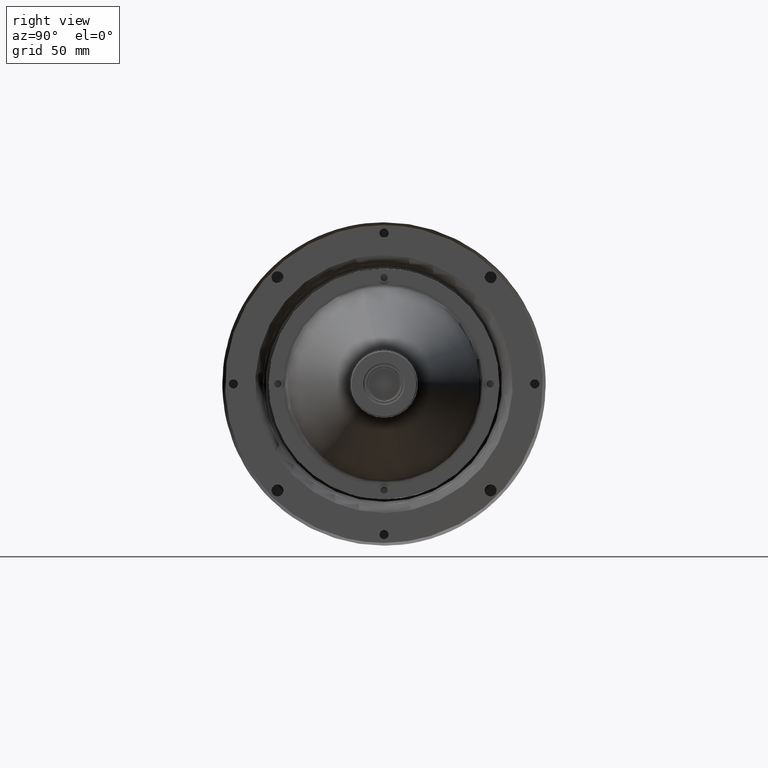
[diagram: clean part render]
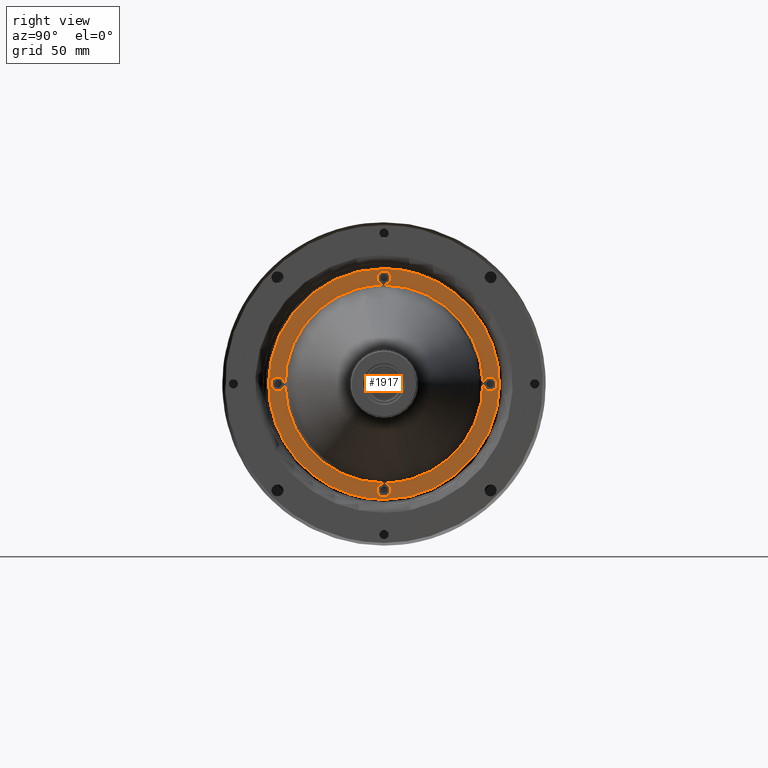
[diagram: same view with one face highlighted and labeled with its STEP entity id]
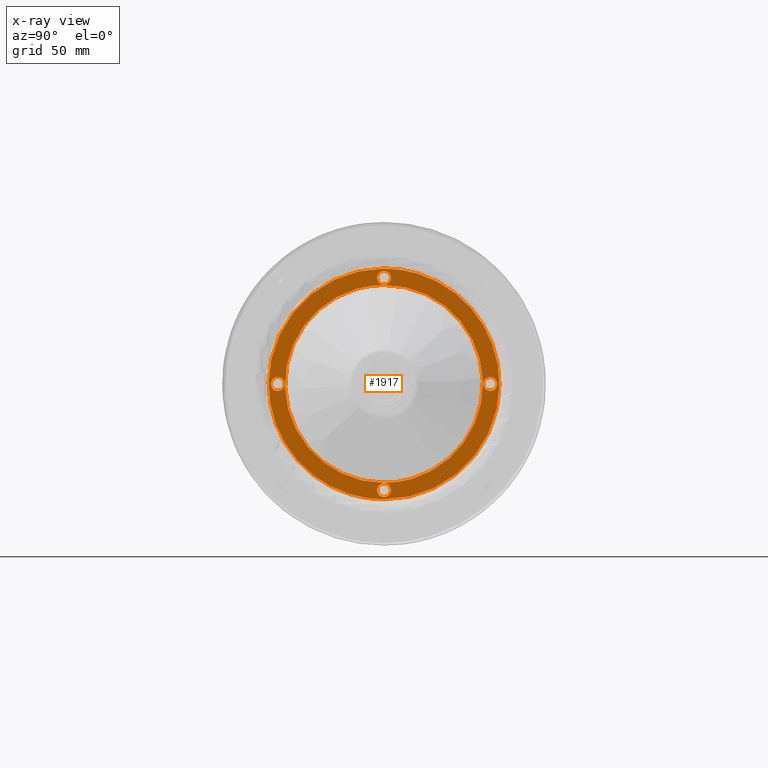
[diagram: x-ray of the same camera — body ghosted, the highlighted face saturated]
A machine part, right view. The second image highlights one B-rep face of the part: STEP entity #1917.
The next image is the same camera in x-ray: the body ghosted, the highlighted face saturated — about 0% of this face is hidden behind the body in this view.
In plain terms, the highlighted planar face has unit normal (1, 0, 0).
Its self-contained STEP definition (entity closure, byte-faithful):
#3 = CARTESIAN_POINT ( 'NONE',  ( 161.0389117160000296, 4.117472029141106660, -131.0910145502462569 ) ) ;
#40 = CARTESIAN_POINT ( 'NONE',  ( 161.0389117163655328, -8.049116928532384918E-13, -6.473153871999994813 ) ) ;
#68 = CARTESIAN_POINT ( 'NONE',  ( 161.0389117160000296, -47.47248686520487126, -26.60025869309153279 ) ) ;
#95 = CARTESIAN_POINT ( 'NONE',  ( 161.0389117160000580, 60.98255263353625111, -51.87580994879739649 ) ) ;
#100 = CARTESIAN_POINT ( 'NONE',  ( 161.0389117160000296, -3.274454732592399608, -8.328974213624936951 ) ) ;
#143 = CARTESIAN_POINT ( 'NONE',  ( 161.0389117160000296, 3.544381890641800759, -14.22852663700000697 ) ) ;
#156 = ORIENTED_EDGE ( 'NONE', *, *, #12985, .T. ) ;
#163 = CARTESIAN_POINT ( 'NONE',  ( 161.0389117160000296, -31.56160650135801760, -13.54263103552140990 ) ) ;
#390 = CARTESIAN_POINT ( 'NONE',  ( 161.0389117160000296, -17.38755938195324546, -119.4642967694286995 ) ) ;
#522 = CARTESIAN_POINT ( 'NONE',  ( 161.0389117160000865, -11.27876224693847540, -130.2137380401611608 ) ) ;
#567 = CARTESIAN_POINT ( 'NONE',  ( 161.0389117160000296, -40.68664381772625660, -32.54986956188965053 ) ) ;
#644 = CARTESIAN_POINT ( 'NONE',  ( 161.0389117160000012, -3.654776427326511090, -127.1991557368634176 ) ) ;
#659 = CARTESIAN_POINT ( 'NONE',  ( 161.0389117160000580, -35.67324858157572010, -27.53655237819077684 ) ) ;
#694 = CARTESIAN_POINT ( 'NONE',  ( 161.0389117160000012, 3.749927119244932605, -9.726239630900860078 ) ) ;
#718 = FACE_BOUND ( 'NONE', #4202, .T. ) ;
#878 = CARTESIAN_POINT ( 'NONE',  ( 161.0389117163655328, -61.74999999999975131, -68.22315387216745819 ) ) ;
#938 = CARTESIAN_POINT ( 'NONE',  ( 161.0389117160000296, 60.30033053437433210, -71.22622726547265870 ) ) ;
#1120 = CARTESIAN_POINT ( 'NONE',  ( 161.0389117160000012, 16.34770587345265724, -129.2056440920947580 ) ) ;
#1194 = CARTESIAN_POINT ( 'NONE',  ( 161.0389117160000296, 3.002970324510967348, -128.5233813374299245 ) ) ;
#1218 = CARTESIAN_POINT ( 'NONE',  ( 161.0389117160000012, 59.78726682771062428, -47.93574399662016106 ) ) ;
#1221 = CARTESIAN_POINT ( 'NONE',  ( 161.0389117163655328, -61.74999999999975131, -68.22315387216745819 ) ) ;
#1310 = CARTESIAN_POINT ( 'NONE',  ( 161.0389117159999728, 38.44006014733103171, -18.13853954491141351 ) ) ;
#1358 = CARTESIAN_POINT ( 'NONE',  ( 161.0389117160000296, 35.67320876119070050, -27.53661446789783795 ) ) ;
#1383 = CARTESIAN_POINT ( 'NONE',  ( 161.0389117160000296, 54.34535823874349347, -67.24720778765367868 ) ) ;
#1394 = ORIENTED_EDGE ( 'NONE', *, *, #12240, .T. ) ;
#1405 = CARTESIAN_POINT ( 'NONE',  ( 161.0389117160000296, 14.31029795757659429, -6.867659532099485098 ) ) ;
#1436 = CARTESIAN_POINT ( 'NONE',  ( 161.0389117160000296, -57.02405391582720995, -64.56851211069668750 ) ) ;
#1499 = CARTESIAN_POINT ( 'NONE',  ( 161.0389117160000296, 11.27641026424283410, -130.2141875202475489 ) ) ;
#1549 = CARTESIAN_POINT ( 'NONE',  ( 161.0389117160000296, 7.056449687612154520, -14.57458209316809494 ) ) ;
#1603 = CARTESIAN_POINT ( 'NONE',  ( 161.0389117160000296, -3.002970324508358768, -7.922926406563331803 ) ) ;
#1776 = B_SPLINE_CURVE_WITH_KNOTS ( 'NONE', 3,
 ( #17470, #16157, #3401, #17657, #9080, #7685, #9172, #14868, #694, #7779, #13472, #15315, #15225, #2283, #10846, #6662, #14964, #13564 ),
 .UNSPECIFIED., .F., .F.,
 ( 4, 2, 2, 2, 2, 2, 2, 2, 4 ),
 ( 0.5000000000000000000, 0.5624999999999998890, 0.6249999999999997780, 0.6874999999999997780, 0.7499999999999997780, 0.8124999999999998890, 0.8749999999999998890, 0.9375000000000000000, 1.000000000000000000 ),
 .UNSPECIFIED. ) ;
#1887 = CARTESIAN_POINT ( 'NONE',  ( 161.0389117160000296, -3.544751096055065887, -14.22852663700000697 ) ) ;
#1917 = ADVANCED_FACE ( 'NONE', ( #14894, #718, #12090, #7895, #13586, #6506 ), #1943, .T. ) ;
#1943 = PLANE ( 'NONE',  #15541 ) ;
#2071 = CARTESIAN_POINT ( 'NONE',  ( 161.0389117160000580, -17.38817520905850600, -16.98219401569953391 ) ) ;
#2074 = CARTESIAN_POINT ( 'NONE',  ( 161.0389117160000296, 61.00297032452583323, -70.52338133742397019 ) ) ;
#2146 = CARTESIAN_POINT ( 'NONE',  ( 161.0389117160000012, -2.300330534377600600, -123.2200804785263415 ) ) ;
#2163 = CARTESIAN_POINT ( 'NONE',  ( 161.0389117157644989, 2.457945681961920278E-11, -122.2177811068669939 ) ) ;
#2184 = EDGE_CURVE ( 'NONE', #17455, #16139, #15841, .T. ) ;
#2283 = CARTESIAN_POINT ( 'NONE',  ( 161.0389117160000296, 2.300330534376698211, -13.22622726547020555 ) ) ;
#2312 = ORIENTED_EDGE ( 'NONE', *, *, #8029, .T. ) ;
#2416 = CARTESIAN_POINT ( 'NONE',  ( 161.0389117160000012, 3.274454732592463113, -128.1173335303708143 ) ) ;
#2510 = CARTESIAN_POINT ( 'NONE',  ( 161.0389117160000296, 58.49691424107486171, -64.47308099124188630 ) ) ;
#2600 = CARTESIAN_POINT ( 'NONE',  ( 161.0389117160000296, 54.25000000000002132, -67.72606360817704285 ) ) ;
#2616 = ORIENTED_EDGE ( 'NONE', *, *, #12443, .T. ) ;
#2620 = CARTESIAN_POINT ( 'NONE',  ( 161.0389117160000580, 31.56175832515216584, -13.54264601989101102 ) ) ;
#2623 = CARTESIAN_POINT ( 'NONE',  ( 161.0389117160000296, -61.74992711922997302, -68.72006811326984632 ) ) ;
#2647 = CARTESIAN_POINT ( 'NONE',  ( 161.0389117164875188, -7.080532376349109395E-14, -129.9731538719985906 ) ) ;
#2713 = CARTESIAN_POINT ( 'NONE',  ( 161.0389117160000296, 62.59642686345928553, -76.45736425718196472 ) ) ;
#2762 = CARTESIAN_POINT ( 'NONE',  ( 161.0389117160000012, 23.93813324461543957, -19.69524470270077288 ) ) ;
#2781 = CARTESIAN_POINT ( 'NONE',  ( 161.0389117160000296, -5.661979251878589636, -5.475737327016373612 ) ) ;
#2904 = CARTESIAN_POINT ( 'NONE',  ( 161.0389117160000580, 62.99999486906458657, -64.08656991015384108 ) ) ;
#2907 = CARTESIAN_POINT ( 'NONE',  ( 161.0389117160000296, -54.34535823869154569, -69.19909995616920639 ) ) ;
#3064 = CARTESIAN_POINT ( 'NONE',  ( 161.0389117160000296, -62.59638853523033220, -76.45718834496358340 ) ) ;
#3169 = B_SPLINE_CURVE_WITH_KNOTS ( 'NONE', 3,
 ( #8301, #5703, #2907, #11385, #17063, #6816, #16965, #16778, #12500, #18179, #14085, #4027, #9698, #4311, #5515, #15380, #2623, #1221 ),
 .UNSPECIFIED., .F., .F.,
 ( 4, 2, 2, 2, 2, 2, 2, 2, 4 ),
 ( 0.000000000000000000, 0.06250000000000000000, 0.1250000000000000000, 0.1875000000000000000, 0.2500000000000000000, 0.3125000000000000000, 0.3750000000000000000, 0.4375000000000000000, 0.5000000000000000000 ),
 .UNSPECIFIED. ) ;
#3240 = CARTESIAN_POINT ( 'NONE',  ( 161.0389117160000296, 0.000000000000000000, -131.2231538716189903 ) ) ;
#3283 = CARTESIAN_POINT ( 'NONE',  ( 161.0389117160000296, -53.64865834668400169, -61.16619816021698597 ) ) ;
#3285 = CARTESIAN_POINT ( 'NONE',  ( 161.0389117160000296, 27.05027908240523260, -21.35879843066304673 ) ) ;
#3373 = CARTESIAN_POINT ( 'NONE',  ( 161.0389117160000580, -53.99461408344740221, -64.67816762558052801 ) ) ;
#3401 = CARTESIAN_POINT ( 'NONE',  ( 161.0389117160000296, 0.9759460843493316107, -6.568512110747937172 ) ) ;
#3435 = B_SPLINE_CURVE_WITH_KNOTS ( 'NONE', 3,
 ( #6270, #13533, #10541, #10634, #2074, #938, #3561, #17809, #14935, #17900, #6633, #6365, #9144, #11942, #8024, #13717, #17626, #5051 ),
 .UNSPECIFIED., .F., .F.,
 ( 4, 2, 2, 2, 2, 2, 2, 2, 4 ),
 ( 0.5000000000000000000, 0.5625000000000000000, 0.6250000000000000000, 0.6875000000000000000, 0.7500000000000000000, 0.8125000000000000000, 0.8750000000000000000, 0.9375000000000000000, 1.000000000000000000 ),
 .UNSPECIFIED. ) ;
#3447 = CARTESIAN_POINT ( 'NONE',  ( 161.0389117160000296, -2.300227465421268658, -129.2261241965265128 ) ) ;
#3463 = CARTESIAN_POINT ( 'NONE',  ( 161.0389117160000296, -14.01114745304531084, -120.4884604461021809 ) ) ;
#3540 = CARTESIAN_POINT ( 'NONE',  ( 161.0389117160000296, -3.274454732583433891, -124.3289742136130798 ) ) ;
#3560 = CARTESIAN_POINT ( 'NONE',  ( 161.0389117160000580, 17.38817520808597550, -119.4641137276522045 ) ) ;
#3561 = CARTESIAN_POINT ( 'NONE',  ( 161.0389117160000296, 59.89412387786651237, -71.49747393850732635 ) ) ;
#3654 = CARTESIAN_POINT ( 'NONE',  ( 161.0389117160000012, 3.544751093373791129, -122.2177811068669655 ) ) ;
#3728 = CARTESIAN_POINT ( 'NONE',  ( 161.0389117160000012, 3.750072880753861693, -126.7200681130871658 ) ) ;
#3748 = CARTESIAN_POINT ( 'NONE',  ( 161.0389117160000580, 42.92544317121446795, -101.1685632536766519 ) ) ;
#3967 = EDGE_LOOP ( 'NONE', ( #14954, #10419 ) ) ;
#4004 = CARTESIAN_POINT ( 'NONE',  ( 161.0389117160000296, 0.9759460843491211124, -122.5685121107464255 ) ) ;
#4024 = CARTESIAN_POINT ( 'NONE',  ( 161.0389117160000580, 56.62148673109299324, -40.29247687628883767 ) ) ;
#4027 = CARTESIAN_POINT ( 'NONE',  ( 161.0389117160000296, -59.89417965823452050, -71.49760860467463885 ) ) ;
#4098 = CARTESIAN_POINT ( 'NONE',  ( 161.0389117160000296, -0.4974714381106030148, -122.4731538719999691 ) ) ;
#4116 = CARTESIAN_POINT ( 'NONE',  ( 161.0389117160000580, 15.81531695310709651, -7.224854720960490972 ) ) ;
#4165 = CARTESIAN_POINT ( 'NONE',  ( 161.0389117160000296, 14.01114745653362803, -15.95784729763010468 ) ) ;
#4171 = EDGE_CURVE ( 'NONE', #13824, #8625, #5968, .T. ) ;
#4202 = EDGE_LOOP ( 'NONE', ( #10645, #156 ) ) ;
#4212 = CARTESIAN_POINT ( 'NONE',  ( 161.0389117160000296, 27.93049204061746593, -124.8446200101266044 ) ) ;
#4217 = CARTESIAN_POINT ( 'NONE',  ( 161.0389117160000296, -2.300330534393434601, -7.220080478538674740 ) ) ;
#4280 = CARTESIAN_POINT ( 'NONE',  ( 161.0389117160000012, -56.62148673101006580, -96.15383086682209068 ) ) ;
#4308 = CARTESIAN_POINT ( 'NONE',  ( 161.0389117160000296, 62.99992298380523437, -72.35973783284623551 ) ) ;
#4311 = CARTESIAN_POINT ( 'NONE',  ( 161.0389117160000296, -61.00307339336452372, -70.52348440651842054 ) ) ;
#4339 = CARTESIAN_POINT ( 'NONE',  ( 161.0389117160000296, -54.99692660663102117, -65.92282333749392365 ) ) ;
#4357 = CARTESIAN_POINT ( 'NONE',  ( 161.0389117160000296, 17.38755937608956259, -16.98201097059423859 ) ) ;
#4471 = CARTESIAN_POINT ( 'NONE',  ( 161.0389117160000296, -62.99999486911685409, -72.35973783226846479 ) ) ;
#4500 = CARTESIAN_POINT ( 'NONE',  ( 161.0389117160000296, 10.26317834678810215, -6.056315240591414906 ) ) ;
#4560 = CARTESIAN_POINT ( 'NONE',  ( 161.0389117160000296, -7.203572612470504843, -130.8185541801432521 ) ) ;
#4689 = CARTESIAN_POINT ( 'NONE',  ( 161.0389117160000012, 51.24110026420938624, -85.61086366727457175 ) ) ;
#4869 = CARTESIAN_POINT ( 'NONE',  ( 161.0389117160000296, -53.64872422712574007, -75.28014785387215113 ) ) ;
#4871 = CARTESIAN_POINT ( 'NONE',  ( 161.0389117160000580, 7.056017284064768802, -121.8718850871116786 ) ) ;
#4915 = CARTESIAN_POINT ( 'NONE',  ( 161.0389117160000296, -10.26317834652839700, -130.3899925024332447 ) ) ;
#5048 = CARTESIAN_POINT ( 'NONE',  ( 161.0389117160000296, -32.94515470220918729, -25.29777225796444640 ) ) ;
#5051 = CARTESIAN_POINT ( 'NONE',  ( 161.0389117163655328, 54.25000000000024158, -68.22315387200006853 ) ) ;
#5172 = CARTESIAN_POINT ( 'NONE',  ( 161.0389117160000296, -61.00297032462464841, -65.92292640670936521 ) ) ;
#5209 = CARTESIAN_POINT ( 'NONE',  ( 161.0389117160000296, 1.894179658388862375, -122.9486991394192188 ) ) ;
#5416 = CARTESIAN_POINT ( 'NONE',  ( 161.0389117160000296, 41.62293266548888226, -115.6956830531807014 ) ) ;
#5490 = CARTESIAN_POINT ( 'NONE',  ( 161.0389117160000296, 3.654641761241532283, -127.1990999563673910 ) ) ;
#5512 = CARTESIAN_POINT ( 'NONE',  ( 161.0389117160000296, 22.19845974676276867, -9.227303697557410089 ) ) ;
#5515 = CARTESIAN_POINT ( 'NONE',  ( 161.0389117160000296, -61.27432006641428330, -70.11727775002998442 ) ) ;
#5517 = CARTESIAN_POINT ( 'NONE',  ( 161.0389117160000296, -0.9760018648846073841, -6.568377444673937582 ) ) ;
#5576 = CARTESIAN_POINT ( 'NONE',  ( 161.0389117160000012, -27.93049204085767201, -11.60168773297307432 ) ) ;
#5584 = CARTESIAN_POINT ( 'NONE',  ( 161.0389117160000296, 58.97594608436395447, -64.56851211075790786 ) ) ;
#5604 = CARTESIAN_POINT ( 'NONE',  ( 161.0389117160000296, 20.28761086171533279, -128.0104845310934536 ) ) ;
#5609 = CARTESIAN_POINT ( 'NONE',  ( 161.0389117160000012, -3.749927119243415152, -10.72006811307960206 ) ) ;
#5630 = CARTESIAN_POINT ( 'NONE',  ( 161.0389117163655044, 2.296212748400695340E-16, -122.4731538719999975 ) ) ;
#5700 = CARTESIAN_POINT ( 'NONE',  ( 161.0389117160000296, 31.56160650154206948, -122.9036767072947356 ) ) ;
#5703 = CARTESIAN_POINT ( 'NONE',  ( 161.0389117160000296, -54.24999999999999289, -68.72024413571578805 ) ) ;
#5714 = VERTEX_POINT ( 'NONE', #15964 ) ;
#5747 = VERTEX_POINT ( 'NONE', #40 ) ;
#5770 = CARTESIAN_POINT ( 'NONE',  ( 161.0389117160000012, -50.08457366106467390, -106.6632161287624996 ) ) ;
#5847 = CARTESIAN_POINT ( 'NONE',  ( 161.0389117160000580, 53.99461408351440639, -71.76814011640665569 ) ) ;
#5936 = VERTEX_POINT ( 'NONE', #7584 ) ;
#5956 = CARTESIAN_POINT ( 'NONE',  ( 161.0389117160000296, -19.28821820983367630, -128.2607086972302284 ) ) ;
#5968 = B_SPLINE_CURVE_WITH_KNOTS ( 'NONE', 3,
 ( #2163, #9050, #14932, #3463, #390, #16215, #6089, #16306, #16400, #11760, #10359, #17623, #16125, #16030, #9327, #4869, #7652, #3373, #3283, #14746, #8960, #13348, #12126, #14836, #567, #659, #5048, #14655, #7841, #2071, #17719, #7747, #1887, #13258 ),
 .UNSPECIFIED., .F., .F.,
 ( 4, 2, 2, 2, 2, 2, 2, 2, 2, 2, 2, 2, 2, 2, 2, 2, 4 ),
 ( 0.000000000000000000, 0.06250000000000000000, 0.1250000000000000000, 0.1875000000000000000, 0.2500000000000000000, 0.3125000000000000000, 0.3750000000000000000, 0.4375000000000000000, 0.5000000000000000000, 0.5625000000000000000, 0.6250000000000000000, 0.6875000000000000000, 0.7500000000000000000, 0.8125000000000000000, 0.8750000000000000000, 0.9375000000000000000, 1.000000000000000000 ),
 .UNSPECIFIED. ) ;
#6089 = CARTESIAN_POINT ( 'NONE',  ( 161.0389117160000296, -27.05027908445303453, -115.0875093109226839 ) ) ;
#6167 = B_SPLINE_CURVE_WITH_KNOTS ( 'NONE', 3,
 ( #15472, #18355, #13896, #3, #7193, #13986, #16774, #17153, #8579, #1499, #1120, #5604, #4212, #5700, #11192, #5416, #16868, #11098, #11476, #12587, #7095, #15659, #2713, #4308, #2904, #12876, #95, #1218, #4024, #6907, #12774, #14082, #15567, #1310, #2620, #14173, #5512, #9694, #4116, #1405, #7000, #12971, #11920, #4500, #14364, #11569, #10260, #14463, #16014 ),
 .UNSPECIFIED., .F., .F.,
 ( 4, 1, 2, 2, 2, 2, 2, 2, 2, 2, 2, 2, 2, 2, 2, 2, 2, 2, 2, 1, 1, 2, 2, 2, 2, 4 ),
 ( 0.000000000000000000, 0.01562499999999997224, 0.02343749999999995490, 0.03124999999999993755, 0.04687499999999994449, 0.06249999999999994449, 0.1250000000000002220, 0.1875000000000003331, 0.2500000000000004441, 0.3125000000000005551, 0.3750000000000006661, 0.4375000000000007772, 0.5000000000000008882, 0.5625000000000007772, 0.6250000000000006661, 0.6875000000000005551, 0.7500000000000004441, 0.8125000000000003331, 0.8750000000000002220, 0.9062500000000001110, 0.9218750000000001110, 0.9296875000000001110, 0.9375000000000001110, 0.9531250000000001110, 0.9687500000000000000, 1.000000000000000000 ),
 .UNSPECIFIED. ) ;
#6178 = CARTESIAN_POINT ( 'NONE',  ( 161.0389117160000012, 40.68664382028948978, -103.8964381799772241 ) ) ;
#6251 = CARTESIAN_POINT ( 'NONE',  ( 161.0389117160000296, -0.9759460843513786399, -129.8777956332517647 ) ) ;
#6270 = CARTESIAN_POINT ( 'NONE',  ( 161.0389117163655328, 61.74999999999976552, -68.22315387199925851 ) ) ;
#6346 = CARTESIAN_POINT ( 'NONE',  ( 161.0389117160000296, -3.749927119243004370, -126.7200681130871658 ) ) ;
#6365 = CARTESIAN_POINT ( 'NONE',  ( 161.0389117160000296, 56.10582034161868847, -71.49760860458466993 ) ) ;
#6506 = FACE_OUTER_BOUND ( 'NONE', #14495, .T. ) ;
#6573 = CARTESIAN_POINT ( 'NONE',  ( 161.0389117160000296, -61.75007288076999856, -67.72623963106664746 ) ) ;
#6633 = CARTESIAN_POINT ( 'NONE',  ( 161.0389117160000296, 57.02405391564455073, -71.87779563324917831 ) ) ;
#6662 = CARTESIAN_POINT ( 'NONE',  ( 161.0389117160000296, 0.9758257285737236275, -13.87800328763900914 ) ) ;
#6666 = ORIENTED_EDGE ( 'NONE', *, *, #7296, .T. ) ;
#6816 = CARTESIAN_POINT ( 'NONE',  ( 161.0389117160000296, -55.69966946549492803, -71.22622726537166216 ) ) ;
#6818 = B_SPLINE_CURVE_WITH_KNOTS ( 'NONE', 3,
 ( #7170, #2600, #1383, #12851, #15266, #12751, #17035, #14152, #11078, #2510, #5584, #8557, #8190, #12659, #16940, #14246, #16659, #15545 ),
 .UNSPECIFIED., .F., .F.,
 ( 4, 2, 2, 2, 2, 2, 2, 2, 4 ),
 ( 0.000000000000000000, 0.06250000000000000000, 0.1250000000000000000, 0.1875000000000000000, 0.2500000000000000000, 0.3125000000000000000, 0.3750000000000000000, 0.4375000000000000000, 0.5000000000000000000 ),
 .UNSPECIFIED. ) ;
#6881 = CARTESIAN_POINT ( 'NONE',  ( 161.0389117160000296, -4.117472029320543569, -5.355293192754133180 ) ) ;
#6907 = CARTESIAN_POINT ( 'NONE',  ( 161.0389117160000012, 54.68057382968501656, -36.66138627665699801 ) ) ;
#6912 = CARTESIAN_POINT ( 'NONE',  ( 161.0389117160000296, -3.654776427326811294, -11.19915573687620558 ) ) ;
#6938 = CARTESIAN_POINT ( 'NONE',  ( 161.0389117160000296, -59.89412387800769011, -64.94883380557396890 ) ) ;
#6974 = CARTESIAN_POINT ( 'NONE',  ( 161.0389117160000296, -10.26263556271891275, -6.056234693978419514 ) ) ;
#6993 = CARTESIAN_POINT ( 'NONE',  ( 161.0389117163655328, -54.25000000000025580, -68.22315387183336099 ) ) ;
#7000 = CARTESIAN_POINT ( 'NONE',  ( 161.0389117160000012, 13.30325579557022486, -6.641652157077460039 ) ) ;
#7025 = VERTEX_POINT ( 'NONE', #12768 ) ;
#7049 = CARTESIAN_POINT ( 'NONE',  ( 161.0389117160000012, 40.68668365047370372, -32.54980745982036439 ) ) ;
#7095 = CARTESIAN_POINT ( 'NONE',  ( 161.0389117160000012, 59.78730837730515901, -88.51065128918648384 ) ) ;
#7127 = CARTESIAN_POINT ( 'NONE',  ( 161.0389117160000296, -56.10582034174399269, -64.94869913934213912 ) ) ;
#7170 = CARTESIAN_POINT ( 'NONE',  ( 161.0389117163655328, 54.25000000000024158, -68.22315387200006853 ) ) ;
#7193 = CARTESIAN_POINT ( 'NONE',  ( 161.0389117160000296, 5.146388961470859336, -131.0150383713359759 ) ) ;
#7242 = CARTESIAN_POINT ( 'NONE',  ( 161.0389117160000296, 53.99454203923059481, -64.67816762659337826 ) ) ;
#7261 = CARTESIAN_POINT ( 'NONE',  ( 161.0389117160000296, -2.573896153116847163, -5.260413968196523626 ) ) ;
#7294 = CARTESIAN_POINT ( 'NONE',  ( 161.0389117160000296, -2.300227465429862672, -13.22612419651830606 ) ) ;
#7296 = EDGE_CURVE ( 'NONE', #5714, #7025, #7893, .T. ) ;
#7390 = B_SPLINE_CURVE_WITH_KNOTS ( 'NONE', 3,
 ( #7731, #17702, #6251, #16199, #3447, #9125, #14822, #644, #6346, #10616, #16292, #3540, #14916, #2146, #9769, #15641, #4098, #17039 ),
 .UNSPECIFIED., .F., .F.,
 ( 4, 2, 2, 2, 2, 2, 2, 2, 4 ),
 ( 0.000000000000000000, 0.1249999999999987788, 0.2499999999999975575, 0.3749999999999963363, 0.4999999999999951150, 0.6249999999999938938, 0.7499999999999958922, 0.8749999999999978906, 1.000000000000000000 ),
 .UNSPECIFIED. ) ;
#7514 = EDGE_LOOP ( 'NONE', ( #2312, #2616 ) ) ;
#7537 = VERTEX_POINT ( 'NONE', #9833 ) ;
#7569 = CARTESIAN_POINT ( 'NONE',  ( 161.0389117160000580, 27.05041785330406867, -115.0875032453130871 ) ) ;
#7584 = CARTESIAN_POINT ( 'NONE',  ( 161.0389117163655328, 61.74999999999976552, -68.22315387199925851 ) ) ;
#7610 = CARTESIAN_POINT ( 'NONE',  ( 161.0389117160000580, -22.19845974648211495, -127.2190040455353284 ) ) ;
#7652 = CARTESIAN_POINT ( 'NONE',  ( 161.0389117160000296, -53.99454203929780505, -71.76814011741946331 ) ) ;
#7685 = CARTESIAN_POINT ( 'NONE',  ( 161.0389117160000296, 3.003073393467196261, -7.922823337617176165 ) ) ;
#7731 = CARTESIAN_POINT ( 'NONE',  ( 161.0389117164875188, -7.080532376349109395E-14, -129.9731538719985906 ) ) ;
#7747 = CARTESIAN_POINT ( 'NONE',  ( 161.0389117160000296, -7.056017286746037342, -14.57442265646637125 ) ) ;
#7779 = CARTESIAN_POINT ( 'NONE',  ( 161.0389117160000296, 3.750072880753462456, -10.72006811309753971 ) ) ;
#7841 = CARTESIAN_POINT ( 'NONE',  ( 161.0389117160000296, -23.93751600441409977, -19.69506505495487758 ) ) ;
#7893 = B_SPLINE_CURVE_WITH_KNOTS ( 'NONE', 3,
 ( #9760, #14333, #7261, #6881, #12944, #2781, #10045, #16841, #6974, #12743, #8457, #18241, #5576, #163, #8369, #18418, #68, #11352, #11539, #17218, #15440, #14053, #15631, #11257, #4471, #3064, #16934, #17027, #4280, #12844, #5770, #11449, #17124, #10142, #15817, #15905, #7610, #5956, #11632, #10405, #16260, #15991, #522, #4915, #17312, #4560, #14793, #17485, #3240 ),
 .UNSPECIFIED., .F., .F.,
 ( 4, 1, 2, 2, 2, 2, 2, 2, 2, 2, 2, 2, 2, 2, 2, 2, 2, 2, 2, 1, 1, 2, 2, 2, 2, 4 ),
 ( 0.000000000000000000, 0.01562499999999997224, 0.02343749999999995490, 0.03124999999999993755, 0.04687499999999990286, 0.06249999999999986816, 0.1249999999999997780, 0.1874999999999996669, 0.2499999999999995559, 0.3124999999999994449, 0.3749999999999993339, 0.4374999999999992228, 0.4999999999999991118, 0.5624999999999992228, 0.6249999999999993339, 0.6874999999999994449, 0.7499999999999995559, 0.8124999999999996669, 0.8749999999999997780, 0.9062499999999996669, 0.9218749999999996669, 0.9296874999999996669, 0.9374999999999996669, 0.9531249999999997780, 0.9687499999999997780, 1.000000000000000000 ),
 .UNSPECIFIED. ) ;
#7895 = FACE_BOUND ( 'NONE', #15833, .T. ) ;
#7999 = CARTESIAN_POINT ( 'NONE',  ( 161.0389117160000296, 3.274320066505138183, -124.3290299941304369 ) ) ;
#8024 = CARTESIAN_POINT ( 'NONE',  ( 161.0389117160000296, 54.72575292180495410, -70.11745388617191566 ) ) ;
#8029 = EDGE_CURVE ( 'NONE', #5936, #7537, #3435, .T. ) ;
#8097 = CARTESIAN_POINT ( 'NONE',  ( 161.0389117160000296, 0.4974714381100937555, -129.9731538720000117 ) ) ;
#8190 = CARTESIAN_POINT ( 'NONE',  ( 161.0389117160000296, 60.30022746542687884, -65.22018354748195179 ) ) ;
#8301 = CARTESIAN_POINT ( 'NONE',  ( 161.0389117163655328, -54.25000000000025580, -68.22315387183336099 ) ) ;
#8303 = CARTESIAN_POINT ( 'NONE',  ( 161.0389117160000296, -1.894179658391906385, -13.49760860457867295 ) ) ;
#8369 = CARTESIAN_POINT ( 'NONE',  ( 161.0389117160000296, -38.44021197112520838, -18.13855452928100576 ) ) ;
#8457 = CARTESIAN_POINT ( 'NONE',  ( 161.0389117159999728, -16.34770587338098835, -7.240663650875867496 ) ) ;
#8557 = CARTESIAN_POINT ( 'NONE',  ( 161.0389117160000296, 59.89417965837282765, -64.94869913940547690 ) ) ;
#8579 = CARTESIAN_POINT ( 'NONE',  ( 161.0389117160000296, 10.26263556259540088, -130.3900730490523472 ) ) ;
#8584 = CARTESIAN_POINT ( 'NONE',  ( 161.0389117160000012, -0.9759460843463269031, -13.87779563325653776 ) ) ;
#8625 = VERTEX_POINT ( 'NONE', #9026 ) ;
#8960 = CARTESIAN_POINT ( 'NONE',  ( 161.0389117160000296, -51.24110026525200112, -50.83544407812451738 ) ) ;
#9026 = CARTESIAN_POINT ( 'NONE',  ( 161.0389117159585339, 1.640478658790385040E-11, -14.22852663693313957 ) ) ;
#9050 = CARTESIAN_POINT ( 'NONE',  ( 161.0389117160000296, -3.544381884862002785, -122.2177811074002705 ) ) ;
#9080 = CARTESIAN_POINT ( 'NONE',  ( 161.0389117160000296, 2.300227465429200091, -7.220183547482640130 ) ) ;
#9125 = CARTESIAN_POINT ( 'NONE',  ( 161.0389117160000012, -3.003073393478332243, -128.5234844063728872 ) ) ;
#9144 = CARTESIAN_POINT ( 'NONE',  ( 161.0389117160000296, 55.69977253457313537, -71.22612419651666471 ) ) ;
#9172 = CARTESIAN_POINT ( 'NONE',  ( 161.0389117160000296, 3.274320066504006199, -8.329029994130328518 ) ) ;
#9297 = EDGE_CURVE ( 'NONE', #8625, #13824, #14256, .T. ) ;
#9327 = CARTESIAN_POINT ( 'NONE',  ( 161.0389117160000296, -52.26552506720067015, -82.23381571201969109 ) ) ;
#9364 = ORIENTED_EDGE ( 'NONE', *, *, #9729, .T. ) ;
#9398 = CARTESIAN_POINT ( 'NONE',  ( 161.0389117160000296, 2.300330534387634795, -129.2262272654691344 ) ) ;
#9420 = CARTESIAN_POINT ( 'NONE',  ( 161.0389117160000012, 14.01157986008101552, -120.4883010080903318 ) ) ;
#9635 = ORIENTED_EDGE ( 'NONE', *, *, #17708, .T. ) ;
#9673 = CARTESIAN_POINT ( 'NONE',  ( 161.0389117163655044, 2.296212748400695340E-16, -122.4731538719999975 ) ) ;
#9694 = CARTESIAN_POINT ( 'NONE',  ( 161.0389117160000296, 19.28821821032483896, -8.185599045931951423 ) ) ;
#9698 = CARTESIAN_POINT ( 'NONE',  ( 161.0389117160000296, -60.30022746529784428, -71.22612419661909655 ) ) ;
#9700 = CARTESIAN_POINT ( 'NONE',  ( 161.0389117160000296, -3.274320066508795701, -12.11727774986341188 ) ) ;
#9729 = EDGE_CURVE ( 'NONE', #12764, #12669, #14496, .T. ) ;
#9760 = CARTESIAN_POINT ( 'NONE',  ( 161.0389117160000296, 0.000000000000000000, -5.223153871381140512 ) ) ;
#9765 = CARTESIAN_POINT ( 'NONE',  ( 161.0389117160000296, 2.300227465429835139, -123.2201835474828755 ) ) ;
#9769 = CARTESIAN_POINT ( 'NONE',  ( 161.0389117160000580, -1.894300014171420798, -122.9489067938043831 ) ) ;
#9792 = CARTESIAN_POINT ( 'NONE',  ( 161.0389117160000296, -3.750072880758200444, -9.726239630922002277 ) ) ;
#9833 = CARTESIAN_POINT ( 'NONE',  ( 161.0389117163655328, 54.25000000000024158, -68.22315387200006853 ) ) ;
#9836 = CARTESIAN_POINT ( 'NONE',  ( 161.0389117160000296, 32.94529347800896346, -25.29777832816757765 ) ) ;
#9888 = CARTESIAN_POINT ( 'NONE',  ( 161.0389117163655328, -8.049116928532384918E-13, -6.473153871999994813 ) ) ;
#9962 = ORIENTED_EDGE ( 'NONE', *, *, #17527, .T. ) ;
#10026 = CARTESIAN_POINT ( 'NONE',  ( 161.0389117160000296, 42.92538840621653407, -35.27778695357134353 ) ) ;
#10045 = CARTESIAN_POINT ( 'NONE',  ( 161.0389117160000296, -7.201357744370636915, -5.627517129112375116 ) ) ;
#10106 = CARTESIAN_POINT ( 'NONE',  ( 161.0389117160000296, -54.72575292191134366, -66.32885385763837860 ) ) ;
#10142 = CARTESIAN_POINT ( 'NONE',  ( 161.0389117160000296, -38.44006014723965592, -118.3077681980792022 ) ) ;
#10186 = EDGE_CURVE ( 'NONE', #5747, #13892, #1776, .T. ) ;
#10260 = CARTESIAN_POINT ( 'NONE',  ( 161.0389117160000296, 4.118171023173597511, -5.323484657432174139 ) ) ;
#10359 = CARTESIAN_POINT ( 'NONE',  ( 161.0389117160000296, -42.92538840641026354, -101.1685207905456139 ) ) ;
#10405 = CARTESIAN_POINT ( 'NONE',  ( 161.0389117160000296, -14.31029795733985743, -129.5786482109789404 ) ) ;
#10419 = ORIENTED_EDGE ( 'NONE', *, *, #4171, .T. ) ;
#10449 = CARTESIAN_POINT ( 'NONE',  ( 161.0389117160000012, 32.94515470711013450, -111.1485354818569249 ) ) ;
#10541 = CARTESIAN_POINT ( 'NONE',  ( 161.0389117160000296, 61.65464176125432516, -69.19909995634402833 ) ) ;
#10616 = CARTESIAN_POINT ( 'NONE',  ( 161.0389117160000012, -3.750072880757806093, -125.7262396309128150 ) ) ;
#10634 = CARTESIAN_POINT ( 'NONE',  ( 161.0389117160000296, 61.27445473258089237, -70.11733353039133476 ) ) ;
#10645 = ORIENTED_EDGE ( 'NONE', *, *, #10186, .T. ) ;
#10725 = CARTESIAN_POINT ( 'NONE',  ( 161.0389117160000580, 35.67324857949830630, -108.9097553664287688 ) ) ;
#10794 = CARTESIAN_POINT ( 'NONE',  ( 161.0389117160000296, 0.4970902638191294631, -122.4731538720000401 ) ) ;
#10846 = CARTESIAN_POINT ( 'NONE',  ( 161.0389117160000296, 1.894300014164259638, -13.49740095019499897 ) ) ;
#10847 = CARTESIAN_POINT ( 'NONE',  ( 161.0389117160000296, -60.30033053451133895, -65.22008047862992441 ) ) ;
#10885 = CARTESIAN_POINT ( 'NONE',  ( 161.0389117160000580, 1.894300014171359958, -129.4974009501955834 ) ) ;
#11078 = CARTESIAN_POINT ( 'NONE',  ( 161.0389117160000296, 57.50308575892364615, -64.47322675275673021 ) ) ;
#11098 = CARTESIAN_POINT ( 'NONE',  ( 161.0389117160000296, 50.08460751516905418, -106.6630360480339874 ) ) ;
#11192 = CARTESIAN_POINT ( 'NONE',  ( 161.0389117160000012, 38.44021197094111386, -118.3077532139033110 ) ) ;
#11224 = CARTESIAN_POINT ( 'NONE',  ( 161.0389117160000296, -54.34515058438227442, -67.24732814331562736 ) ) ;
#11257 = CARTESIAN_POINT ( 'NONE',  ( 161.0389117160000296, -62.99992298375315869, -64.08656991073158338 ) ) ;
#11290 = CARTESIAN_POINT ( 'NONE',  ( 161.0389117160000296, -1.894123877856622951, -6.948833805492063753 ) ) ;
#11335 = CARTESIAN_POINT ( 'NONE',  ( 161.0389117160000012, 51.24116644702549195, -50.83541549860024134 ) ) ;
#11352 = CARTESIAN_POINT ( 'NONE',  ( 161.0389117160000296, -50.08460751504587449, -29.78327169474251690 ) ) ;
#11385 = CARTESIAN_POINT ( 'NONE',  ( 161.0389117160000296, -54.72554526734566593, -70.11733353026116333 ) ) ;
#11415 = CARTESIAN_POINT ( 'NONE',  ( 161.0389117160000296, -58.49691424125381189, -64.47322675278329029 ) ) ;
#11431 = CARTESIAN_POINT ( 'NONE',  ( 161.0389117159585339, 1.640478658790385040E-11, -14.22852663693313957 ) ) ;
#11449 = CARTESIAN_POINT ( 'NONE',  ( 161.0389117160000296, -47.47237377501460287, -109.8460604674734213 ) ) ;
#11476 = CARTESIAN_POINT ( 'NONE',  ( 161.0389117160000012, 54.68053997555414014, -99.78510154709802293 ) ) ;
#11523 = CARTESIAN_POINT ( 'NONE',  ( 161.0389117160000296, 53.64865834626615992, -75.28010958440688682 ) ) ;
#11539 = CARTESIAN_POINT ( 'NONE',  ( 161.0389117160000296, -54.68053997567734115, -36.66120619612550513 ) ) ;
#11569 = CARTESIAN_POINT ( 'NONE',  ( 161.0389117160000296, 7.203572612477096904, -5.627753562856473657 ) ) ;
#11632 = CARTESIAN_POINT ( 'NONE',  ( 161.0389117160000296, -15.81531695273876537, -129.2214530221612279 ) ) ;
#11760 = CARTESIAN_POINT ( 'NONE',  ( 161.0389117160000296, -40.68668365035393464, -103.8965002847350689 ) ) ;
#11848 = CARTESIAN_POINT ( 'NONE',  ( 161.0389117160000580, 48.52788291647939189, -92.16110694580341089 ) ) ;
#11903 = DIRECTION ( 'NONE',  ( 1.000000000000000000, 0.000000000000000000, 0.000000000000000000 ) ) ;
#11920 = CARTESIAN_POINT ( 'NONE',  ( 161.0389117160000296, 11.27876224711156361, -6.232569702855507821 ) ) ;
#11942 = CARTESIAN_POINT ( 'NONE',  ( 161.0389117160000296, 54.99692660652885223, -70.52348440638212423 ) ) ;
#12090 = FACE_BOUND ( 'NONE', #7514, .T. ) ;
#12126 = CARTESIAN_POINT ( 'NONE',  ( 161.0389117160000296, -46.86429313781147243, -41.17297485713521610 ) ) ;
#12178 = CARTESIAN_POINT ( 'NONE',  ( 161.0389117160000296, 63.79788054599999469, -68.22315387150000277 ) ) ;
#12240 = EDGE_CURVE ( 'NONE', #7025, #5714, #6167, .T. ) ;
#12253 = CARTESIAN_POINT ( 'NONE',  ( 161.0389117160000296, -61.65464176128902807, -67.24720778780657326 ) ) ;
#12443 = EDGE_CURVE ( 'NONE', #7537, #5936, #6818, .T. ) ;
#12500 = CARTESIAN_POINT ( 'NONE',  ( 161.0389117160000296, -57.50308575876140083, -71.97308099121829628 ) ) ;
#12543 = CARTESIAN_POINT ( 'NONE',  ( 161.0389117160000296, 48.52781673366332882, -44.28522937432177997 ) ) ;
#12565 = CARTESIAN_POINT ( 'NONE',  ( 161.0389117160000012, 3.654776427328860766, -125.2471520071316036 ) ) ;
#12587 = CARTESIAN_POINT ( 'NONE',  ( 161.0389117160000296, 56.62144518149845140, -96.15374332390450718 ) ) ;
#12616 = CARTESIAN_POINT ( 'NONE',  ( 161.0389117160000296, -58.97600186503994735, -64.56837744472116469 ) ) ;
#12659 = CARTESIAN_POINT ( 'NONE',  ( 161.0389117160000296, 61.00307339347114066, -65.92282333761649227 ) ) ;
#12669 = VERTEX_POINT ( 'NONE', #2647 ) ;
#12725 = CARTESIAN_POINT ( 'NONE',  ( 161.0389117160000580, 46.86434299272648474, -41.17293567404728805 ) ) ;
#12743 = CARTESIAN_POINT ( 'NONE',  ( 161.0389117160000296, -11.27641026426074333, -6.232120222760290318 ) ) ;
#12751 = CARTESIAN_POINT ( 'NONE',  ( 161.0389117160000296, 55.69966946561810062, -65.22008047853037738 ) ) ;
#12764 = VERTEX_POINT ( 'NONE', #5630 ) ;
#12768 = CARTESIAN_POINT ( 'NONE',  ( 161.0389117160000296, 0.000000000000000000, -131.2231538716189903 ) ) ;
#12774 = CARTESIAN_POINT ( 'NONE',  ( 161.0389117160000580, 50.08457366103816355, -29.78309161421101336 ) ) ;
#12844 = CARTESIAN_POINT ( 'NONE',  ( 161.0389117160000296, -54.68057382965854885, -99.78492146636949656 ) ) ;
#12851 = CARTESIAN_POINT ( 'NONE',  ( 161.0389117160000296, 54.72554526742130321, -66.32897421360819123 ) ) ;
#12876 = CARTESIAN_POINT ( 'NONE',  ( 161.0389117160000296, 62.59638853531675551, -59.98911939815619121 ) ) ;
#12944 = CARTESIAN_POINT ( 'NONE',  ( 161.0389117160000296, -5.146388961585048882, -5.431269371664183332 ) ) ;
#12971 = CARTESIAN_POINT ( 'NONE',  ( 161.0389117160000580, 12.79662295557142038, -6.534458511147356319 ) ) ;
#12985 = EDGE_CURVE ( 'NONE', #13892, #5747, #14407, .T. ) ;
#13258 = CARTESIAN_POINT ( 'NONE',  ( 161.0389117159585339, 1.640478658790385040E-11, -14.22852663693313957 ) ) ;
#13260 = CARTESIAN_POINT ( 'NONE',  ( 161.0389117160000012, 23.93751600585222050, -116.7512426888177828 ) ) ;
#13348 = CARTESIAN_POINT ( 'NONE',  ( 161.0389117160000580, -48.52788291543680543, -44.28520079479750393 ) ) ;
#13472 = CARTESIAN_POINT ( 'NONE',  ( 161.0389117160000296, 3.654641761255731591, -11.19909995634237809 ) ) ;
#13533 = CARTESIAN_POINT ( 'NONE',  ( 161.0389117160000296, 61.75007288075428846, -68.72006811309374541 ) ) ;
#13564 = CARTESIAN_POINT ( 'NONE',  ( 161.0389117163655328, 5.043938092128946279E-15, -13.97315387199951253 ) ) ;
#13586 = FACE_BOUND ( 'NONE', #3967, .T. ) ;
#13717 = CARTESIAN_POINT ( 'NONE',  ( 161.0389117160000296, 54.34515058436101498, -69.19897960056627539 ) ) ;
#13824 = VERTEX_POINT ( 'NONE', #16574 ) ;
#13856 = DIRECTION ( 'NONE',  ( 0.000000000000000000, 1.000000000000000000, 0.000000000000000000 ) ) ;
#13892 = VERTEX_POINT ( 'NONE', #14162 ) ;
#13896 = CARTESIAN_POINT ( 'NONE',  ( 161.0389117160000296, 2.573896152888477840, -131.1858937748041285 ) ) ;
#13964 = CARTESIAN_POINT ( 'NONE',  ( 161.0389117160000012, 3.749927119245339835, -125.7262396309128718 ) ) ;
#13986 = CARTESIAN_POINT ( 'NONE',  ( 161.0389117160000296, 5.661979251919746048, -130.9705704159731283 ) ) ;
#14028 = EDGE_LOOP ( 'NONE', ( #18282, #9962 ) ) ;
#14053 = CARTESIAN_POINT ( 'NONE',  ( 161.0389117160000296, -60.98251430544620888, -51.87598586166172510 ) ) ;
#14082 = CARTESIAN_POINT ( 'NONE',  ( 161.0389117160000012, 47.47237377522731094, -26.60024727573918923 ) ) ;
#14085 = CARTESIAN_POINT ( 'NONE',  ( 161.0389117160000296, -58.97594608419427686, -71.87779563328979293 ) ) ;
#14152 = CARTESIAN_POINT ( 'NONE',  ( 161.0389117160000296, 57.02399813512378302, -64.56837744467325990 ) ) ;
#14162 = CARTESIAN_POINT ( 'NONE',  ( 161.0389117163655328, 5.043938092128946279E-15, -13.97315387199951253 ) ) ;
#14173 = CARTESIAN_POINT ( 'NONE',  ( 161.0389117160000296, 27.93023485997367672, -11.60165902205581467 ) ) ;
#14246 = CARTESIAN_POINT ( 'NONE',  ( 161.0389117160000296, 61.65477642732916763, -67.24715200713693264 ) ) ;
#14256 = B_SPLINE_CURVE_WITH_KNOTS ( 'NONE', 3,
 ( #11431, #143, #1549, #4165, #4357, #2762, #3285, #9836, #1358, #7049, #10026, #12725, #12543, #11335, #18401, #15705, #7242, #5847, #11523, #17200, #4689, #11848, #16308, #3748, #6178, #10725, #10449, #7569, #13260, #3560, #9420, #4871, #3654, #15110 ),
 .UNSPECIFIED., .F., .F.,
 ( 4, 2, 2, 2, 2, 2, 2, 2, 2, 2, 2, 2, 2, 2, 2, 2, 4 ),
 ( 0.000000000000000000, 0.06250000000000011102, 0.1250000000000001943, 0.1875000000000002776, 0.2500000000000003886, 0.3125000000000005551, 0.3750000000000006661, 0.4375000000000007772, 0.5000000000000008882, 0.5625000000000007772, 0.6250000000000006661, 0.6875000000000005551, 0.7500000000000004441, 0.8125000000000003331, 0.8750000000000002220, 0.9375000000000001110, 1.000000000000000000 ),
 .UNSPECIFIED. ) ;
#14275 = CARTESIAN_POINT ( 'NONE',  ( 161.0389117160000296, -0.4969142410892840589, -6.473226752757409663 ) ) ;
#14333 = CARTESIAN_POINT ( 'NONE',  ( 161.0389117160000865, -1.029718843492298364, -5.222789875061303100 ) ) ;
#14364 = CARTESIAN_POINT ( 'NONE',  ( 161.0389117160000296, 8.224657023440695269, -5.753815802590848349 ) ) ;
#14407 = B_SPLINE_CURVE_WITH_KNOTS ( 'NONE', 3,
 ( #16873, #16968, #8584, #8303, #7294, #18270, #9700, #6912, #5609, #9792, #17065, #100, #1603, #4217, #11290, #5517, #14275, #9888 ),
 .UNSPECIFIED., .F., .F.,
 ( 4, 2, 2, 2, 2, 2, 2, 2, 4 ),
 ( 0.000000000000000000, 0.06250000000000004163, 0.1250000000000000833, 0.1875000000000001110, 0.2500000000000001665, 0.3125000000000002220, 0.3750000000000002220, 0.4375000000000001110, 0.5000000000000000000 ),
 .UNSPECIFIED. ) ;
#14463 = CARTESIAN_POINT ( 'NONE',  ( 161.0389117160000296, 2.059802551159399808, -5.222425749765301717 ) ) ;
#14495 = EDGE_LOOP ( 'NONE', ( #6666, #1394 ) ) ;
#14496 = B_SPLINE_CURVE_WITH_KNOTS ( 'NONE', 3,
 ( #9673, #10794, #4004, #5209, #9765, #16472, #7999, #12565, #13964, #3728, #5490, #2416, #1194, #9398, #10885, #18061, #8097, #15090 ),
 .UNSPECIFIED., .F., .F.,
 ( 4, 2, 2, 2, 2, 2, 2, 2, 4 ),
 ( 0.000000000000000000, 0.1250000000000020262, 0.2500000000000040523, 0.3750000000000061062, 0.5000000000000048850, 0.6250000000000036637, 0.7500000000000024425, 0.8750000000000013323, 1.000000000000000000 ),
 .UNSPECIFIED. ) ;
#14655 = CARTESIAN_POINT ( 'NONE',  ( 161.0389117160000580, -27.05041785820503719, -21.35880450086617444 ) ) ;
#14746 = CARTESIAN_POINT ( 'NONE',  ( 161.0389117160000580, -52.26559095270400945, -54.21245375888462092 ) ) ;
#14793 = CARTESIAN_POINT ( 'NONE',  ( 161.0389117160000296, -4.118171023186808277, -131.1228230855675747 ) ) ;
#14822 = CARTESIAN_POINT ( 'NONE',  ( 161.0389117160000296, -3.274320066508901839, -128.1172777498748019 ) ) ;
#14836 = CARTESIAN_POINT ( 'NONE',  ( 161.0389117160000580, -42.92544317058133174, -35.27774449009380930 ) ) ;
#14843 = CARTESIAN_POINT ( 'NONE',  ( 161.0389117163655328, -61.74999999999975131, -68.22315387216745819 ) ) ;
#14868 = CARTESIAN_POINT ( 'NONE',  ( 161.0389117160000296, 3.654776427328395805, -9.247152007130074125 ) ) ;
#14894 = FACE_BOUND ( 'NONE', #14028, .T. ) ;
#14916 = CARTESIAN_POINT ( 'NONE',  ( 161.0389117160000296, -3.002970324522000745, -123.9229264065742484 ) ) ;
#14932 = CARTESIAN_POINT ( 'NONE',  ( 161.0389117160000296, -7.056449691100516119, -121.8717256490998295 ) ) ;
#14935 = CARTESIAN_POINT ( 'NONE',  ( 161.0389117160000296, 58.49691424108841176, -71.97308099124187208 ) ) ;
#14954 = ORIENTED_EDGE ( 'NONE', *, *, #9297, .T. ) ;
#14964 = CARTESIAN_POINT ( 'NONE',  ( 161.0389117160000296, 0.4974714381173939159, -13.97315387200000636 ) ) ;
#15090 = CARTESIAN_POINT ( 'NONE',  ( 161.0389117164875188, -7.080532376349109395E-14, -129.9731538719985906 ) ) ;
#15110 = CARTESIAN_POINT ( 'NONE',  ( 161.0389117157644989, 2.457945681961920278E-11, -122.2177811068669939 ) ) ;
#15225 = CARTESIAN_POINT ( 'NONE',  ( 161.0389117160000296, 3.002970324521903045, -12.52338133742781068 ) ) ;
#15266 = CARTESIAN_POINT ( 'NONE',  ( 161.0389117160000296, 54.99702967548175536, -65.92292640657021252 ) ) ;
#15315 = CARTESIAN_POINT ( 'NONE',  ( 161.0389117160000296, 3.274454732577862792, -12.11733353039424443 ) ) ;
#15380 = CARTESIAN_POINT ( 'NONE',  ( 161.0389117160000296, -61.65477642729214836, -69.19915573701919698 ) ) ;
#15440 = CARTESIAN_POINT ( 'NONE',  ( 161.0389117160000296, -59.78730837723286129, -47.93565645371303674 ) ) ;
#15472 = CARTESIAN_POINT ( 'NONE',  ( 161.0389117160000296, 0.000000000000000000, -131.2231538716189903 ) ) ;
#15504 = CARTESIAN_POINT ( 'NONE',  ( 161.0389117160000296, -54.24999999999999289, -67.72568243376777275 ) ) ;
#15541 = AXIS2_PLACEMENT_3D ( 'NONE', #12178, #11903, #13856 ) ;
#15545 = CARTESIAN_POINT ( 'NONE',  ( 161.0389117163655328, 61.74999999999976552, -68.22315387199925851 ) ) ;
#15567 = CARTESIAN_POINT ( 'NONE',  ( 161.0389117160000580, 41.62304575538767182, -20.75063610709281292 ) ) ;
#15631 = CARTESIAN_POINT ( 'NONE',  ( 161.0389117160000296, -62.59642686340699669, -59.98894348529190523 ) ) ;
#15641 = CARTESIAN_POINT ( 'NONE',  ( 161.0389117160000296, -0.9758257285670071113, -122.5683044563608917 ) ) ;
#15659 = CARTESIAN_POINT ( 'NONE',  ( 161.0389117160000296, 60.98251430539373530, -84.57032188186447286 ) ) ;
#15705 = CARTESIAN_POINT ( 'NONE',  ( 161.0389117160000296, 53.64872422702209320, -61.16615988790590563 ) ) ;
#15817 = CARTESIAN_POINT ( 'NONE',  ( 161.0389117160000296, -31.56175832524354874, -122.9036617231188018 ) ) ;
#15833 = EDGE_LOOP ( 'NONE', ( #9635, #9364 ) ) ;
#15841 = B_SPLINE_CURVE_WITH_KNOTS ( 'NONE', 3,
 ( #878, #6573, #12253, #17930, #5172, #10847, #6938, #12616, #11415, #17280, #1436, #7127, #16898, #4339, #10106, #11224, #15504, #17090 ),
 .UNSPECIFIED., .F., .F.,
 ( 4, 2, 2, 2, 2, 2, 2, 2, 4 ),
 ( 0.5000000000000000000, 0.5625000000000000000, 0.6250000000000000000, 0.6875000000000000000, 0.7500000000000000000, 0.8125000000000000000, 0.8750000000000000000, 0.9375000000000000000, 1.000000000000000000 ),
 .UNSPECIFIED. ) ;
#15905 = CARTESIAN_POINT ( 'NONE',  ( 161.0389117160000580, -27.93023486053499127, -124.8446487207593663 ) ) ;
#15964 = CARTESIAN_POINT ( 'NONE',  ( 161.0389117160000296, 0.000000000000000000, -5.223153871381140512 ) ) ;
#15991 = CARTESIAN_POINT ( 'NONE',  ( 161.0389117160000296, -12.79662295565811903, -129.9118492318449682 ) ) ;
#16014 = CARTESIAN_POINT ( 'NONE',  ( 161.0389117160000296, 0.000000000000000000, -5.223153871381140512 ) ) ;
#16030 = CARTESIAN_POINT ( 'NONE',  ( 161.0389117160000296, -51.24116644768095341, -85.61089224275336562 ) ) ;
#16125 = CARTESIAN_POINT ( 'NONE',  ( 161.0389117160000296, -48.52781673300787446, -92.16107837032465966 ) ) ;
#16139 = VERTEX_POINT ( 'NONE', #6993 ) ;
#16157 = CARTESIAN_POINT ( 'NONE',  ( 161.0389117160000296, 0.4969142410860641901, -6.473080991242607496 ) ) ;
#16199 = CARTESIAN_POINT ( 'NONE',  ( 161.0389117160000012, -1.894179658387243226, -129.4976086045830925 ) ) ;
#16215 = CARTESIAN_POINT ( 'NONE',  ( 161.0389117160000296, -23.93813323910016777, -116.7510630441173163 ) ) ;
#16260 = CARTESIAN_POINT ( 'NONE',  ( 161.0389117160000296, -13.30325579543874781, -129.8046555859662590 ) ) ;
#16292 = CARTESIAN_POINT ( 'NONE',  ( 161.0389117160000296, -3.654641761251978593, -125.2472077876485343 ) ) ;
#16306 = CARTESIAN_POINT ( 'NONE',  ( 161.0389117160000296, -32.94529347596116509, -111.1485294162473565 ) ) ;
#16308 = CARTESIAN_POINT ( 'NONE',  ( 161.0389117160000012, 46.86429313766592486, -95.27333288542008916 ) ) ;
#16400 = CARTESIAN_POINT ( 'NONE',  ( 161.0389117160000296, -35.67320876179206834, -108.9096932740289958 ) ) ;
#16472 = CARTESIAN_POINT ( 'NONE',  ( 161.0389117160000296, 3.003073393468767893, -123.9228233376183539 ) ) ;
#16574 = CARTESIAN_POINT ( 'NONE',  ( 161.0389117157644989, 2.457945681961920278E-11, -122.2177811068669939 ) ) ;
#16659 = CARTESIAN_POINT ( 'NONE',  ( 161.0389117160000296, 61.74992711924569733, -67.72623963090336474 ) ) ;
#16774 = CARTESIAN_POINT ( 'NONE',  ( 161.0389117160000296, 7.201357744288298335, -130.8187906139078223 ) ) ;
#16778 = CARTESIAN_POINT ( 'NONE',  ( 161.0389117160000296, -57.02399813495381409, -71.87793029928043609 ) ) ;
#16841 = CARTESIAN_POINT ( 'NONE',  ( 161.0389117160000296, -8.224114239371505874, -5.753735255977852958 ) ) ;
#16868 = CARTESIAN_POINT ( 'NONE',  ( 161.0389117160000012, 47.47248686512611471, -109.8460490499873146 ) ) ;
#16873 = CARTESIAN_POINT ( 'NONE',  ( 161.0389117163655328, 5.043938092128946279E-15, -13.97315387199951253 ) ) ;
#16898 = CARTESIAN_POINT ( 'NONE',  ( 161.0389117160000296, -55.69977253470699452, -65.22018354737174661 ) ) ;
#16934 = CARTESIAN_POINT ( 'NONE',  ( 161.0389117160000012, -60.98255263362287337, -84.57049779408283996 ) ) ;
#16940 = CARTESIAN_POINT ( 'NONE',  ( 161.0389117160000296, 61.27432006650489882, -66.32902999412209510 ) ) ;
#16965 = CARTESIAN_POINT ( 'NONE',  ( 161.0389117160000296, -56.10587612199862662, -71.49747393842763188 ) ) ;
#16968 = CARTESIAN_POINT ( 'NONE',  ( 161.0389117160000296, -0.4970902638230708659, -13.97315387200000814 ) ) ;
#17027 = CARTESIAN_POINT ( 'NONE',  ( 161.0389117160000296, -59.78726682779354462, -88.51056374626890033 ) ) ;
#17035 = CARTESIAN_POINT ( 'NONE',  ( 161.0389117160000296, 56.10587612213664954, -64.94883380549127594 ) ) ;
#17039 = CARTESIAN_POINT ( 'NONE',  ( 161.0389117163655044, 2.296212748400695340E-16, -122.4731538719999975 ) ) ;
#17063 = CARTESIAN_POINT ( 'NONE',  ( 161.0389117160000296, -54.99702967536906328, -70.52338133729223557 ) ) ;
#17065 = CARTESIAN_POINT ( 'NONE',  ( 161.0389117160000296, -3.654641761244401099, -9.247207787638274112 ) ) ;
#17090 = CARTESIAN_POINT ( 'NONE',  ( 161.0389117163655328, -54.25000000000025580, -68.22315387183336099 ) ) ;
#17124 = CARTESIAN_POINT ( 'NONE',  ( 161.0389117160000296, -41.62304575560021647, -115.6956716356946231 ) ) ;
#17153 = CARTESIAN_POINT ( 'NONE',  ( 161.0389117160000296, 8.224114239247995783, -130.6925724870527006 ) ) ;
#17200 = CARTESIAN_POINT ( 'NONE',  ( 161.0389117160000580, 52.26559095335021254, -82.23385398253711287 ) ) ;
#17218 = CARTESIAN_POINT ( 'NONE',  ( 161.0389117160000296, -56.62144518157075623, -40.29256441919597620 ) ) ;
#17280 = CARTESIAN_POINT ( 'NONE',  ( 161.0389117160000296, -57.50308575908099584, -64.47308099121831049 ) ) ;
#17312 = CARTESIAN_POINT ( 'NONE',  ( 161.0389117159999728, -8.224657023180979465, -130.6924919404335697 ) ) ;
#17455 = VERTEX_POINT ( 'NONE', #14843 ) ;
#17470 = CARTESIAN_POINT ( 'NONE',  ( 161.0389117163655328, -8.049116928532384918E-13, -6.473153871999994813 ) ) ;
#17485 = CARTESIAN_POINT ( 'NONE',  ( 161.0389117160000296, -2.059802551172590146, -131.2238819932345280 ) ) ;
#17527 = EDGE_CURVE ( 'NONE', #16139, #17455, #3169, .T. ) ;
#17623 = CARTESIAN_POINT ( 'NONE',  ( 161.0389117160000296, -46.86434299317454588, -95.27337206826480553 ) ) ;
#17626 = CARTESIAN_POINT ( 'NONE',  ( 161.0389117160000296, 54.25000000000002132, -68.72062531010993780 ) ) ;
#17657 = CARTESIAN_POINT ( 'NONE',  ( 161.0389117160000296, 1.894179658385861886, -6.948699139416869563 ) ) ;
#17702 = CARTESIAN_POINT ( 'NONE',  ( 161.0389117160000296, -0.4970902638165761722, -129.9731538720000117 ) ) ;
#17708 = EDGE_CURVE ( 'NONE', #12669, #12764, #7390, .T. ) ;
#17719 = CARTESIAN_POINT ( 'NONE',  ( 161.0389117160000296, -14.01157985739978962, -15.95800673433183192 ) ) ;
#17809 = CARTESIAN_POINT ( 'NONE',  ( 161.0389117160000296, 58.97600186487306928, -71.87793029932531397 ) ) ;
#17900 = CARTESIAN_POINT ( 'NONE',  ( 161.0389117160000296, 57.50308575891310880, -71.97322675275668757 ) ) ;
#17930 = CARTESIAN_POINT ( 'NONE',  ( 161.0389117160000296, -61.27445473267378873, -66.32897421376627278 ) ) ;
#18061 = CARTESIAN_POINT ( 'NONE',  ( 161.0389117160000012, 0.9758257285664290182, -129.8780032876391033 ) ) ;
#18179 = CARTESIAN_POINT ( 'NONE',  ( 161.0389117160000296, -58.49691424090378433, -71.97322675278330451 ) ) ;
#18241 = CARTESIAN_POINT ( 'NONE',  ( 161.0389117160000296, -20.28761086147513737, -8.435823211807344180 ) ) ;
#18270 = CARTESIAN_POINT ( 'NONE',  ( 161.0389117160000296, -3.003073393469738672, -12.52348440638190397 ) ) ;
#18282 = ORIENTED_EDGE ( 'NONE', *, *, #2184, .T. ) ;
#18355 = CARTESIAN_POINT ( 'NONE',  ( 161.0389117160000865, 1.029718843361798530, -131.2235178679391367 ) ) ;
#18401 = CARTESIAN_POINT ( 'NONE',  ( 161.0389117160000296, 52.26552506708671331, -54.21249203224571289 ) ) ;
#18418 = CARTESIAN_POINT ( 'NONE',  ( 161.0389117160000296, -41.62293266540993386, -20.75062468974047292 ) ) ;